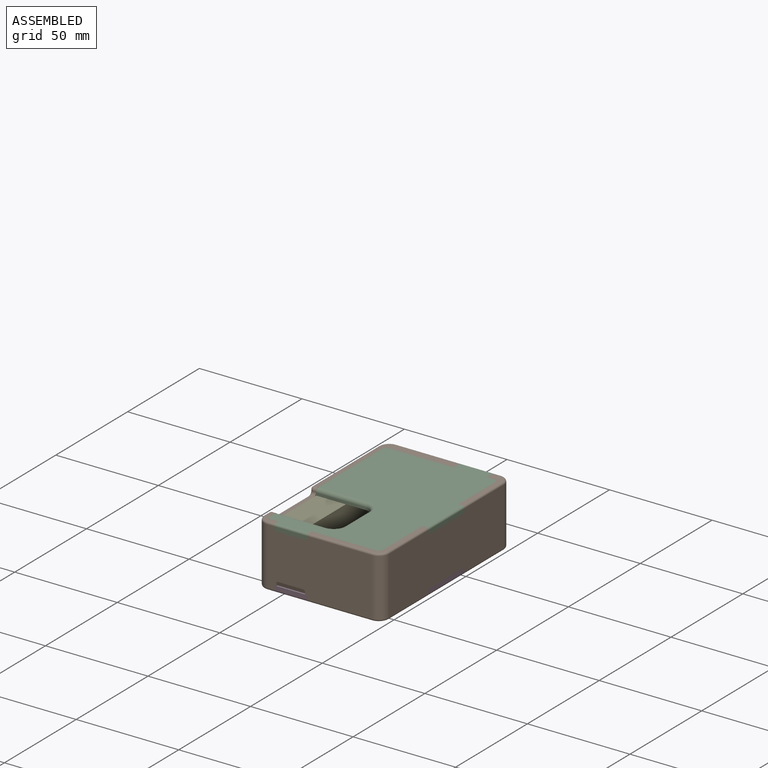
[diagram: assembled view]
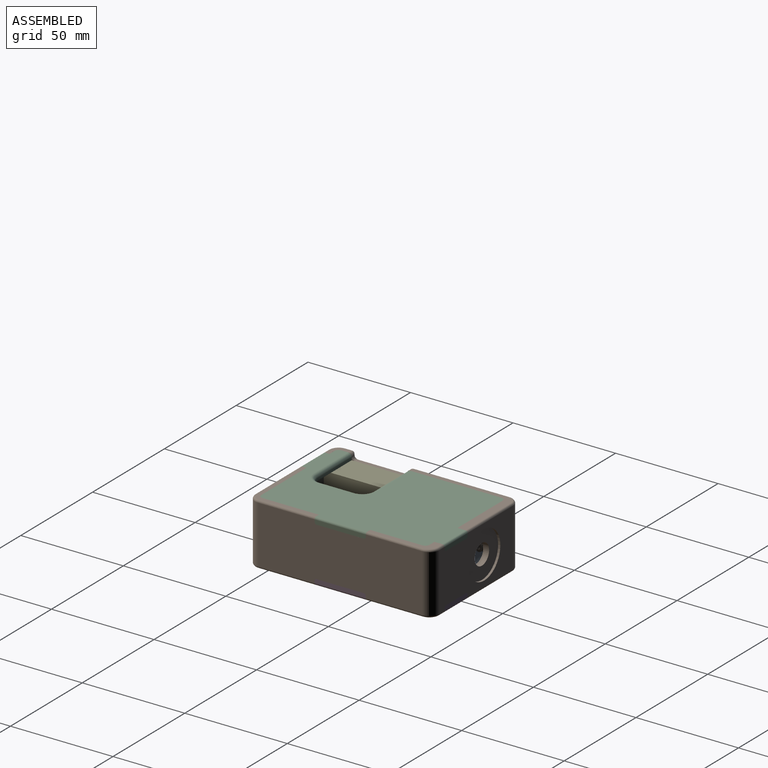
[diagram: assembled view, second angle]
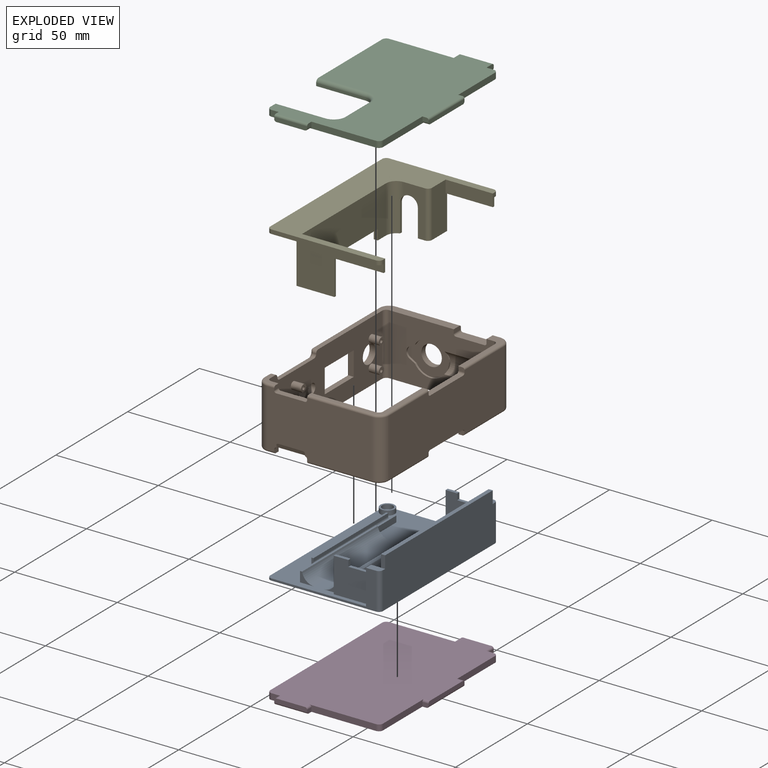
[diagram: exploded view]
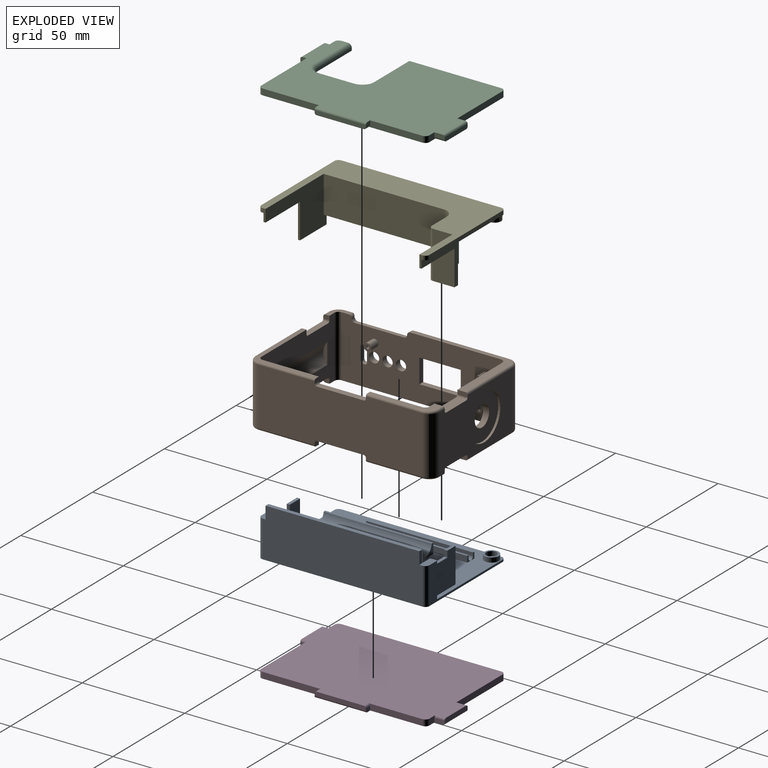
[diagram: exploded view, second angle]
ASSEMBLY  parts=5 mates=4
PART A: 66 faces, bbox 55x82x24 mm
  f0: plane 17x15.62mm, normal (0,1,0), area 235.6mm2, adj f11,f26,f29,f30,f48,f49
  f1: plane 7.38x3.5mm, normal (0,0,1), area 25mm2, adj f4,f12,f13,f14,f29,f37
  f2: plane 7.12x1.5mm, normal (0,0,1), area 10.7mm2, adj f3,f31,f45,f46
  f3: plane 22x18mm, normal (0,1,0), area 322.3mm2, adj f2,f5,f6,f8,f9,f20,f28,f32
  f4: plane 21x18mm, normal (0,-1,0), area 310.3mm2, adj f1,f7,f8,f9,f10,f20,f26,f28
  f5: plane 0.29x0.01mm, normal (0,0,1), area 0mm2, adj f3,f9,f40
  f6: plane 0.29x0.01mm, normal (0,0,1), area 0mm2, adj f3,f8,f41
  f7: plane 0.29x0.01mm, normal (0,0,1), area 0mm2, adj f4,f8,f43
  f8: cylinder r=7mm len=75mm, axis (0,-1,0), area 468mm2, adj f3,f4,f6,f7,f41,f42,f43,f44
  f9: cylinder r=7mm len=75mm, axis (0,-1,0), area 468mm2, adj f3,f4,f5,f10,f28,f38,f39,f40
  f10: plane 0.29x0.01mm, normal (0,0,1), area 0mm2, adj f4,f9,f39
  f11: plane 82x48.12mm, normal (0,0,1), area 1647mm2, adj f0,f14,f15,f16,f17,f18,f21,f22
  f12: plane 78x24mm, normal (1,0,0), area 1854mm2, adj f1,f13,f19,f20,f33,f36,f37,f65
  f13: cylinder r=2mm len=18mm, axis (0,0,-1), area 56.5mm2, adj f1,f12,f14,f20
  f14: plane 51x18mm, normal (0,1,0), area 142.4mm2, adj f1,f11,f13,f15,f20,f29
  f15: cylinder r=2mm len=2mm, axis (0,0,-1), area 3.1mm2, adj f11,f14,f16,f20
  f16: plane 78x1mm, normal (-1,0,0), area 78mm2, adj f11,f15,f17,f20
  f17: cylinder r=2mm len=2mm, axis (0,0,-1), area 3.1mm2, adj f11,f16,f18,f20
  f18: plane 51x18mm, normal (0,-1,0), area 133.9mm2, adj f11,f17,f19,f20,f32,f33
  f19: cylinder r=2mm len=18mm, axis (0,0,-1), area 56.5mm2, adj f12,f18,f20,f33
  f20: plane 82x55mm, normal (0,0,-1), area 3614.3mm2, adj f3,f4,f12,f13,f14,f15,f16,f17
  f21: plane 7x5mm, normal (0,1,0), area 12.4mm2, adj f11,f22,f24,f35
  f22: plane 52.74x5mm, normal (-1,0,0), area 263.7mm2, adj f11,f21,f23,f24
  f23: plane 7x5mm, normal (0,-1,0), area 12.4mm2, adj f11,f22,f24,f35
  f24: plane 52.74x1mm, normal (0,0,1), area 52.7mm2, adj f21,f22,f23,f35
  f25: plane 6x5mm, normal (0,-1,0), area 7.4mm2, adj f11,f34,f45
  f26: plane 23.76x17mm, normal (-1,0,0), area 136.8mm2, adj f0,f4,f11,f27,f28,f30
  f27: plane 7x5mm, normal (0,1,0), area 12.4mm2, adj f11,f26,f28,f34
  f28: plane 75x2mm, normal (0,0,1), area 127.7mm2, adj f3,f4,f9,f26,f27,f34
  f29: plane 17x3.5mm, normal (-1,0,0), area 38.5mm2, adj f0,f1,f4,f11,f14,f49
  f30: plane 5.62x1.5mm, normal (0,0,1), area 8.4mm2, adj f0,f4,f26,f48
  f31: plane 17.12x17mm, normal (0,-1,0), area 261.1mm2, adj f2,f11,f32,f45,f46,f47
  f32: plane 17x3.5mm, normal (-1,0,0), area 38.5mm2, adj f3,f11,f18,f31,f33,f47
  f33: plane 6.88x3.5mm, normal (0,0,1), area 23.2mm2, adj f3,f12,f18,f19,f32,f36
  f34: cylinder r=6.1mm len=52.74mm, axis (0,-1,0), area 447mm2, adj f11,f25,f27,f28
  f35: cylinder r=6.1mm len=52.74mm, axis (0,-1,0), area 447mm2, adj f11,f21,f23,f24
  f36: plane 6x2mm, normal (0,-1,0), area 12mm2, adj f12,f33,f44,f65
  f37: plane 6x2mm, normal (0,1,0), area 12mm2, adj f1,f12,f44,f65
  f38: plane 69x1.55mm, normal (1,0,0), area 106.6mm2, adj f9,f20,f39,f40
  f39: cylinder r=3mm len=3mm, axis (0,0,-1), area 5.9mm2, adj f4,f9,f10,f20,f38
  f40: cylinder r=3mm len=3mm, axis (0,0,-1), area 5.9mm2, adj f3,f5,f9,f20,f38
  f41: cylinder r=3mm len=3mm, axis (0,0,-1), area 5.9mm2, adj f3,f6,f8,f20,f42
  f42: plane 69x1.55mm, normal (-1,0,0), area 106.6mm2, adj f8,f20,f41,f43
  f43: cylinder r=3mm len=3mm, axis (0,0,-1), area 5.9mm2, adj f4,f7,f8,f20,f42
  f44: plane 75x18mm, normal (-1,0,0), area 1350mm2, adj f3,f4,f8,f36,f37,f65
  f45: plane 17x1.5mm, normal (-1,0,0), area 25.5mm2, adj f2,f3,f11,f25,f31
  f46: plane 3x1.5mm, normal (1,0,0), area 4.5mm2, adj f2,f3,f31,f47
  f47: plane 10x1.5mm, normal (0,0,1), area 15mm2, adj f3,f31,f32,f46
  f48: plane 3x1.5mm, normal (1,0,0), area 4.5mm2, adj f0,f4,f30,f49
  f49: plane 10x1.5mm, normal (0,0,1), area 15mm2, adj f0,f4,f29,f48
  f50: cylinder r=2.62mm len=5.25mm, axis (0,0,-1), area 37.1mm2, adj f52,f53
  f51: cylinder r=3.5mm len=7mm, axis (0,0,-1), area 49.5mm2, adj f11,f52
  f52: plane 7x7mm, normal (0,0,1), area 16.8mm2, adj f50,f51
  f53: plane 5.25x5.25mm, normal (0,0,1), area 21.6mm2, adj f50
  f54: plane 3x2.5mm, normal (0,-1,0), area 3.5mm2, adj f11,f55,f57,f58,f64
  f55: plane 52.08x3mm, normal (1,0,0), area 156.2mm2, adj f11,f54,f56,f58
  f56: plane 3x2.5mm, normal (0,1,0), area 3.5mm2, adj f11,f55,f57,f58,f64
  f57: plane 52.08x1.5mm, normal (-1,0,0), area 78.1mm2, adj f54,f56,f58,f64
  f58: plane 52.08x1mm, normal (0,0,1), area 52.1mm2, adj f54,f55,f56,f57
  f59: plane 3x2.5mm, normal (0,-1,0), area 3.5mm2, adj f11,f60,f62,f63,f64
  f60: plane 52.08x1.5mm, normal (1,0,0), area 78.1mm2, adj f59,f61,f63,f64
  f61: plane 3x2.5mm, normal (0,1,0), area 3.5mm2, adj f11,f60,f62,f63,f64
  f62: plane 52.08x3mm, normal (-1,0,0), area 156.2mm2, adj f11,f59,f61,f63
  f63: plane 52.08x1mm, normal (0,0,1), area 52.1mm2, adj f59,f60,f61,f62
  f64: cylinder r=1.5mm len=52.08mm, axis (0,1,0), area 245.4mm2, adj f54,f56,f57,f59,f60,f61
  f65: plane 75x2mm, normal (0,0,1), area 150mm2, adj f12,f36,f37,f44
PART B: 150 faces, bbox 61.8x90.8x30 mm
  f0: plane 51x30mm, normal (0,-1,0), area 1006.7mm2, adj f1,f8,f9,f14,f22,f23,f25,f29
  f1: cylinder r=8.5mm len=15.02mm, axis (0,-1,0), area 17.6mm2, adj f0,f80,f84,f124
  f2: plane 51x30mm, normal (0,1,0), area 1020.8mm2, adj f5,f7,f10,f15,f20,f21,f25,f32
  f3: plane 78x30mm, normal (1,0,0), area 1843.6mm2, adj f7,f8,f21,f22,f25,f90,f91,f92
  f4: plane 80x28mm, normal (-1,0,0), area 1709.6mm2, adj f16,f17,f45,f72,f77,f98,f99,f100
  f5: plane 14x2.27mm, normal (0,0,-1), area 31.8mm2, adj f2,f64,f65,f85
  f6: cylinder r=5mm len=10mm, axis (0,1,0), area 91.1mm2, adj f79,f80
  f7: plane 7.5x7.5mm, normal (0,0,1), area 23.4mm2, adj f2,f3,f21,f37,f43,f44,f45,f127
  f8: plane 50.5x35.5mm, normal (0,0,1), area 232.4mm2, adj f0,f3,f22,f35,f75,f76,f77,f136
  f9: plane 31.5x7.5mm, normal (0,0,1), area 82.4mm2, adj f0,f13,f23,f34,f40,f46,f47,f48
  f10: plane 35.5x31.5mm, normal (0,0,1), area 127.4mm2, adj f2,f13,f20,f38,f41,f49,f50,f51
  f11: plane 51x28mm, normal (0,1,0), area 967.3mm2, adj f16,f24,f29,f30,f31,f34,f35,f36
  f12: plane 80x28mm, normal (1,0,0), area 2140.9mm2, adj f19,f24,f26,f27,f28,f40,f41,f42
  f13: plane 78x30mm, normal (-1,0,0), area 2190.9mm2, adj f9,f10,f14,f15,f20,f23,f26,f27
  f14: plane 31.5x7.5mm, normal (0,0,-1), area 82.4mm2, adj f0,f13,f23,f26,f30,f58,f59,f60
  f15: plane 35.5x31.5mm, normal (0,0,-1), area 127.4mm2, adj f2,f13,f20,f27,f33,f61,f62,f63
  f16: cylinder r=5mm len=28mm, axis (0,0,-1), area 219.9mm2, adj f4,f11,f71,f76
  f17: cylinder r=5mm len=28mm, axis (0,0,-1), area 219.9mm2, adj f4,f18,f44,f73
  f18: plane 51x28mm, normal (0,-1,0), area 1337.3mm2, adj f17,f19,f32,f33,f37,f38,f39,f43
  f19: cylinder r=5mm len=28mm, axis (0,0,-1), area 219.9mm2, adj f12,f18,f50,f62
  f20: cylinder r=2mm len=30mm, axis (0,0,-1), area 94.2mm2, adj f2,f10,f13,f15
  f21: cylinder r=2mm len=30mm, axis (0,0,-1), area 94.2mm2, adj f2,f3,f7,f25
  f22: cylinder r=2mm len=30mm, axis (0,0,-1), area 94.2mm2, adj f0,f3,f8,f25
  f23: cylinder r=2mm len=30mm, axis (0,0,-1), area 94.2mm2, adj f0,f9,f13,f14
  f24: cylinder r=5mm len=28mm, axis (0,0,-1), area 219.9mm2, adj f11,f12,f47,f59
  f25: plane 88x35.5mm, normal (0,0,-1), area 315.8mm2, adj f0,f2,f3,f21,f22,f29,f32,f70
  f26: plane 3x2mm, normal (0,-1,0), area 5.8mm2, adj f12,f13,f14,f58,f66
  f27: plane 3x2mm, normal (0,1,0), area 5.8mm2, adj f12,f13,f15,f61,f67
  f28: plane 23x3mm, normal (0,0,-1), area 69mm2, adj f12,f13,f66,f67
  f29: plane 5x2mm, normal (1,0,0), area 9.8mm2, adj f0,f11,f25,f69,f70
  f30: plane 5x2mm, normal (-1,0,0), area 9.8mm2, adj f0,f11,f14,f60,f68
  f31: plane 14x5mm, normal (0,0,-1), area 70mm2, adj f0,f11,f68,f69
  f32: plane 3x2mm, normal (1,0,0), area 5.8mm2, adj f2,f18,f25,f64,f74
  f33: plane 3x2mm, normal (-1,0,0), area 5.8mm2, adj f2,f15,f18,f63,f65
  f34: plane 5x2mm, normal (-1,0,0), area 9.8mm2, adj f0,f9,f11,f48,f53
  f35: plane 5x2mm, normal (1,0,0), area 9.8mm2, adj f0,f8,f11,f52,f75
  f36: plane 14x5mm, normal (0,0,1), area 70mm2, adj f0,f11,f52,f53
  f37: plane 3x2mm, normal (1,0,0), area 5.8mm2, adj f2,f7,f18,f43,f54
  f38: plane 3x2mm, normal (-1,0,0), area 5.8mm2, adj f2,f10,f18,f49,f55
  f39: plane 14x3mm, normal (0,0,1), area 42mm2, adj f2,f18,f54,f55
  f40: plane 3x2mm, normal (0,-1,0), area 5.8mm2, adj f9,f12,f13,f46,f57
  f41: plane 3x2mm, normal (0,1,0), area 5.8mm2, adj f10,f12,f13,f51,f56
  f42: plane 23x3mm, normal (0,0,1), area 69mm2, adj f12,f13,f56,f57
  f43: cylinder r=1mm len=3.5mm, axis (-1,0,0), area 5.5mm2, adj f7,f18,f37,f44
  f44: torus R=4mm, axis (0,0,1), area 11.4mm2, adj f7,f17,f43,f45
  f45: cylinder r=1mm len=3.5mm, axis (0,1,0), area 5.5mm2, adj f4,f7,f44,f128
  f46: cylinder r=1mm len=27.5mm, axis (0,-1,0), area 43.2mm2, adj f9,f12,f40,f47
  f47: torus R=4mm, axis (0,0,1), area 11.4mm2, adj f9,f24,f46,f48
  f48: cylinder r=1mm len=3.5mm, axis (1,0,0), area 5.5mm2, adj f9,f11,f34,f47
  f49: cylinder r=1mm len=31.5mm, axis (-1,0,0), area 49.5mm2, adj f10,f18,f38,f50
  f50: torus R=4mm, axis (0,0,1), area 11.4mm2, adj f10,f19,f49,f51
  f51: cylinder r=1mm len=27.5mm, axis (0,-1,0), area 43.2mm2, adj f10,f12,f41,f50
  f52: cylinder r=1mm len=5mm, axis (0,-1,0), area 7.9mm2, adj f0,f11,f35,f36
  f53: cylinder r=1mm len=5mm, axis (0,1,0), area 7.9mm2, adj f0,f11,f34,f36
  f54: cylinder r=1mm len=3mm, axis (0,-1,0), area 4.7mm2, adj f2,f18,f37,f39
  f55: cylinder r=1mm len=3mm, axis (0,1,0), area 4.7mm2, adj f2,f18,f38,f39
  f56: cylinder r=1mm len=3mm, axis (1,0,0), area 4.7mm2, adj f12,f13,f41,f42
  f57: cylinder r=1mm len=3mm, axis (-1,0,0), area 4.7mm2, adj f12,f13,f40,f42
  f58: cylinder r=1mm len=27.5mm, axis (0,1,0), area 43.2mm2, adj f12,f14,f26,f59
  f59: torus R=4mm, axis (0,0,1), area 11.4mm2, adj f14,f24,f58,f60
  f60: cylinder r=1mm len=3.5mm, axis (-1,0,0), area 5.5mm2, adj f11,f14,f30,f59
  f61: cylinder r=1mm len=27.5mm, axis (0,1,0), area 43.2mm2, adj f12,f15,f27,f62
  f62: torus R=4mm, axis (0,0,1), area 11.4mm2, adj f15,f19,f61,f63
  f63: cylinder r=1mm len=31.5mm, axis (1,0,0), area 49.5mm2, adj f15,f18,f33,f62
  f64: cylinder r=1mm len=3mm, axis (0,-1,0), area 4.7mm2, adj f2,f5,f18,f32,f89
  f65: cylinder r=1mm len=3mm, axis (0,1,0), area 4.7mm2, adj f2,f5,f18,f33,f88
  f66: cylinder r=1mm len=3mm, axis (-1,0,0), area 4.7mm2, adj f12,f13,f26,f28
  f67: cylinder r=1mm len=3mm, axis (1,0,0), area 4.7mm2, adj f12,f13,f27,f28
  f68: cylinder r=1mm len=5mm, axis (0,1,0), area 7.9mm2, adj f0,f11,f30,f31
  f69: cylinder r=1mm len=5mm, axis (0,-1,0), area 7.9mm2, adj f0,f11,f29,f31
  f70: cylinder r=1mm len=31.5mm, axis (-1,0,0), area 49.5mm2, adj f11,f25,f29,f71
  f71: torus R=4mm, axis (0,0,1), area 11.4mm2, adj f16,f25,f70,f72
  f72: cylinder r=1mm len=80mm, axis (0,-1,0), area 125.7mm2, adj f4,f25,f71,f73
  f73: torus R=4mm, axis (0,0,1), area 11.4mm2, adj f17,f25,f72,f74
  f74: cylinder r=1mm len=3.5mm, axis (1,0,0), area 5.5mm2, adj f18,f25,f32,f73
  f75: cylinder r=1mm len=31.5mm, axis (1,0,0), area 49.5mm2, adj f8,f11,f35,f76
  f76: torus R=4mm, axis (0,0,1), area 11.4mm2, adj f8,f16,f75,f77
  f77: cylinder r=1mm len=46.5mm, axis (0,1,0), area 73mm2, adj f4,f8,f76,f134
  f78: cylinder r=11.25mm len=22.5mm, axis (0,1,0), area 77.8mm2, adj f11,f79
  f79: plane 22.5x22.5mm, normal (0,1,0), area 319.1mm2, adj f6,f78
  f80: plane 20.13x17mm, normal (0,-1,0), area 166.2mm2, adj f1,f6,f81,f82,f83,f84,f126
  f81: cylinder r=8.5mm len=15.1mm, axis (0,-1,0), area 17.8mm2, adj f0,f80,f82,f125
  f82: plane 2.7x1.54mm, normal (0.5,0,-0.87), area 3.1mm2, adj f0,f80,f81,f83
  f83: cylinder r=3mm len=5.2mm, axis (0,-1,0), area 6.3mm2, adj f0,f80,f82,f84
  f84: plane 2.75x1.6mm, normal (0.5,0,0.86), area 3.2mm2, adj f0,f1,f80,f83
  f85: plane 14x2mm, normal (0,-0.94,-0.34), area 29.3mm2, adj f5,f18,f86,f87,f88,f89
  f86: cylinder r=1mm len=1mm, axis (0,-1,0), area 0.2mm2, adj f18,f85,f89
  f87: cylinder r=1mm len=1mm, axis (0,-1,0), area 0.2mm2, adj f18,f85,f88
  f88: plane 1x0.73mm, normal (-1,0,0), area 0.5mm2, adj f18,f65,f85,f87
  f89: plane 1x0.73mm, normal (1,0,0), area 0.5mm2, adj f18,f64,f85,f86
  f90: cylinder r=1mm len=2.5mm, axis (-1,0,0), area 3.9mm2, adj f3,f91,f95,f139
  f91: plane 6.4x2.5mm, normal (0,-1,0), area 16mm2, adj f3,f90,f92,f138
  f92: cylinder r=1mm len=2.5mm, axis (-1,0,0), area 3.9mm2, adj f3,f91,f93,f140
  f93: plane 2.5x1.2mm, normal (0,0,1), area 3mm2, adj f3,f92,f94,f142
  f94: cylinder r=1mm len=2.5mm, axis (-1,0,0), area 3.9mm2, adj f3,f93,f96,f144
  f95: plane 2.5x1.2mm, normal (0,0,-1), area 3mm2, adj f3,f90,f97,f141
  f96: plane 6.4x2.5mm, normal (0,1,0), area 16mm2, adj f3,f94,f97,f145
  f97: cylinder r=1mm len=2.5mm, axis (-1,0,0), area 3.9mm2, adj f3,f95,f96,f143
  f98: cylinder r=2.5mm len=5mm, axis (-1,0,0), area 47.1mm2, adj f3,f4
  f99: cylinder r=2.5mm len=5mm, axis (-1,0,0), area 47.1mm2, adj f3,f4
  f100: cylinder r=2.5mm len=5mm, axis (-1,0,0), area 47.1mm2, adj f3,f4
  f101: plane 20.16x2.5mm, normal (0,0,1), area 50.4mm2, adj f3,f102,f104,f146
  f102: plane 11.72x2.5mm, normal (0,1,0), area 29.3mm2, adj f3,f101,f103,f147
  f103: plane 20.16x2.5mm, normal (0,0,-1), area 50.4mm2, adj f3,f102,f104,f149
  f104: plane 11.72x2.5mm, normal (0,-1,0), area 29.3mm2, adj f3,f101,f103,f148
  f105: cylinder r=4.5mm len=9mm, axis (-1,0,0), area 84.8mm2, adj f3,f4
  f106: cylinder r=0.8mm len=5mm, axis (-1,0,0), area 25.1mm2, adj f108,f109
  f107: cylinder r=1.8mm len=5mm, axis (-1,0,0), area 56.5mm2, adj f3,f108
  f108: plane 3.6x3.6mm, normal (1,0,0), area 8.2mm2, adj f106,f107
  f109: plane 1.6x1.6mm, normal (1,0,0), area 2mm2, adj f106
  f110: cylinder r=0.8mm len=5mm, axis (-1,0,0), area 25.1mm2, adj f112,f113
  f111: cylinder r=1.8mm len=5mm, axis (-1,0,0), area 56.5mm2, adj f3,f112
  f112: plane 3.6x3.6mm, normal (1,0,0), area 8.2mm2, adj f110,f111
  f113: plane 1.6x1.6mm, normal (1,0,0), area 2mm2, adj f110
  f114: cylinder r=0.8mm len=5mm, axis (-1,0,0), area 25.1mm2, adj f116,f117
  f115: cylinder r=1.8mm len=5mm, axis (-1,0,0), area 56.5mm2, adj f3,f116
  f116: plane 3.6x3.6mm, normal (1,0,0), area 8.2mm2, adj f114,f115
  f117: plane 1.6x1.6mm, normal (1,0,0), area 2mm2, adj f114
  f118: plane 24x1.5mm, normal (0,0,1), area 36mm2, adj f3,f129,f132,f137
  f119: plane 10.1x2mm, normal (-1,0,0), area 13.8mm2, adj f0,f124,f125
  f120: plane 10.1x2mm, normal (-1,0,0), area 13.8mm2, adj f2,f122,f123
  f121: plane 10.1x2mm, normal (1,0,0), area 13.8mm2, adj f2,f122,f123
  f122: cylinder r=7.5mm len=41mm, axis (1,0,0), area 227.9mm2, adj f2,f120,f121,f123
  f123: cylinder r=7.5mm len=41mm, axis (1,0,0), area 227.9mm2, adj f2,f120,f121,f122
  f124: cylinder r=7.5mm len=19.32mm, axis (-1,0,0), area 101.3mm2, adj f0,f1,f119,f125,f126
  f125: cylinder r=7.5mm len=19.25mm, axis (-1,0,0), area 101.1mm2, adj f0,f81,f119,f124,f126
  f126: cylinder r=8.5mm len=7.39mm, axis (0,-1,0), area 5.1mm2, adj f80,f124,f125
  f127: cylinder r=1.5mm len=2mm, axis (-1,0,0), area 4.3mm2, adj f3,f7,f128,f129
  f128: bspline ~1.82x1.5mm, area 2.4mm2, adj f45,f127,f130
  f129: cylinder r=1.5mm len=1.5mm, axis (1,0,0), area 3.5mm2, adj f3,f118,f127,f131
  f130: cylinder r=1.5mm len=1.5mm, axis (0,0,-1), area 0.8mm2, adj f4,f128,f131
  f131: torus R=3mm, axis (1,0,0), area 7.6mm2, adj f4,f129,f130,f132
  f132: cylinder r=1.5mm len=24mm, axis (0,1,0), area 56.5mm2, adj f4,f118,f131,f135
  f133: cylinder r=1.5mm len=1.5mm, axis (0,0,-1), area 0.7mm2, adj f4,f134,f135
  f134: bspline ~1.58x1.5mm, area 2.4mm2, adj f77,f133,f136
  f135: torus R=3mm, axis (1,0,0), area 7.6mm2, adj f4,f132,f133,f137
  f136: cylinder r=1.5mm len=2mm, axis (1,0,0), area 4.3mm2, adj f3,f8,f134,f137
  f137: cylinder r=1.5mm len=1.5mm, axis (-1,0,0), area 3.5mm2, adj f3,f118,f135,f136
  f138: cylinder r=0.5mm len=6.4mm, axis (0,0,-1), area 5mm2, adj f4,f91,f139,f140
  f139: torus R=1.5mm, axis (1,0,0), area 1.5mm2, adj f4,f90,f138,f141
  f140: torus R=1.5mm, axis (1,0,0), area 1.5mm2, adj f4,f92,f138,f142
  f141: cylinder r=0.5mm len=1.2mm, axis (0,1,0), area 0.9mm2, adj f4,f95,f139,f143
  f142: cylinder r=0.5mm len=1.2mm, axis (0,-1,0), area 0.9mm2, adj f4,f93,f140,f144
  f143: torus R=1.5mm, axis (1,0,0), area 1.5mm2, adj f4,f97,f141,f145
  f144: torus R=1.5mm, axis (1,0,0), area 1.5mm2, adj f4,f94,f142,f145
  f145: cylinder r=0.5mm len=6.4mm, axis (0,0,1), area 5mm2, adj f4,f96,f143,f144
  f146: cylinder r=0.5mm len=21.16mm, axis (0,-1,0), area 16.1mm2, adj f4,f101,f147,f148
  f147: cylinder r=0.5mm len=12.72mm, axis (0,0,1), area 9.5mm2, adj f4,f102,f146,f149
  f148: cylinder r=0.5mm len=12.72mm, axis (0,0,-1), area 9.5mm2, adj f4,f104,f146,f149
  f149: cylinder r=0.5mm len=21.16mm, axis (0,1,0), area 16.1mm2, adj f4,f103,f147,f148
PART C: 48 faces, bbox 58x90x3 mm
  f0: plane 28.5x3mm, normal (1,0,0), area 82.7mm2, adj f1,f25,f26,f27,f46
  f1: plane 3x2mm, normal (0,-1,0), area 5.8mm2, adj f0,f2,f26,f29,f46
  f2: plane 25x2mm, normal (1,0,0), area 49.6mm2, adj f1,f3,f27,f29,f44,f46
  f3: plane 3x2mm, normal (0,1,0), area 5.8mm2, adj f2,f4,f26,f29,f44
  f4: plane 26.5x3mm, normal (1,0,0), area 76.7mm2, adj f3,f5,f26,f27,f44
  f5: cylinder r=2mm len=3mm, axis (0,0,-1), area 9.4mm2, adj f4,f6,f26,f27
  f6: plane 4.5x3mm, normal (0,1,0), area 10.7mm2, adj f5,f7,f26,f27,f45
  f7: plane 5x2mm, normal (1,0,0), area 9.8mm2, adj f6,f8,f26,f30,f45
  f8: plane 16x2mm, normal (0,1,0), area 31.6mm2, adj f7,f9,f27,f30,f45,f47
  f9: plane 5x2mm, normal (-1,0,0), area 9.8mm2, adj f8,f10,f26,f30,f47
  f10: plane 32.5x3mm, normal (0,1,0), area 94.7mm2, adj f9,f11,f26,f27,f47
  f11: cylinder r=2mm len=3mm, axis (0,0,-1), area 9.4mm2, adj f10,f12,f26,f27
  f12: plane 46x3mm, normal (-1,0,0), area 137.4mm2, adj f11,f13,f26,f27,f31
  f13: plane 24x1.3mm, normal (0,-1,0), area 31.2mm2, adj f12,f14,f27,f31
  f14: cylinder r=5mm len=5mm, axis (0,0,-1), area 10.2mm2, adj f13,f15,f27,f32
  f15: plane 17x1.3mm, normal (-1,0,0), area 22.1mm2, adj f14,f16,f27,f33
  f16: cylinder r=5mm len=5mm, axis (0,0,-1), area 10.2mm2, adj f15,f17,f27,f34
  f17: plane 24x1.3mm, normal (0,1,0), area 31.2mm2, adj f16,f18,f27,f35
  f18: plane 5x3mm, normal (-1,0,0), area 14.4mm2, adj f17,f19,f26,f27,f35
  f19: cylinder r=2mm len=3mm, axis (0,0,-1), area 9.4mm2, adj f18,f20,f26,f27
  f20: plane 4.5x3mm, normal (0,-1,0), area 10.7mm2, adj f19,f21,f26,f27,f42
  f21: plane 3x2mm, normal (-1,0,0), area 5.8mm2, adj f20,f22,f26,f28,f42
  f22: plane 16x2mm, normal (0,-1,0), area 31.6mm2, adj f21,f23,f27,f28,f42,f43
  f23: plane 3x2mm, normal (1,0,0), area 5.8mm2, adj f22,f24,f26,f28,f43
  f24: plane 32.5x3mm, normal (0,-1,0), area 94.7mm2, adj f23,f25,f26,f27,f43
  f25: cylinder r=2mm len=3mm, axis (0,0,-1), area 9.4mm2, adj f0,f24,f26,f27
  f26: plane 88x57mm, normal (0,0,1), area 3738.6mm2, adj f0,f1,f3,f4,f5,f6,f7,f9
  f27: plane 90x58mm, normal (0,0,-1), area 3820.3mm2, adj f0,f2,f4,f5,f6,f8,f10,f11
  f28: cylinder r=1mm len=16mm, axis (-1,0,0), area 25.1mm2, adj f21,f22,f23,f26
  f29: cylinder r=1mm len=25mm, axis (0,-1,0), area 39.3mm2, adj f1,f2,f3,f26
  f30: cylinder r=1mm len=16mm, axis (1,0,0), area 25.1mm2, adj f7,f8,f9,f26
  f31: cylinder r=1.7mm len=24mm, axis (-1,0,0), area 64.1mm2, adj f12,f13,f26,f32
  f32: torus R=6.7mm, axis (0,0,1), area 23.6mm2, adj f14,f26,f31,f33
  f33: cylinder r=1.7mm len=17mm, axis (0,1,0), area 45.4mm2, adj f15,f26,f32,f34
  f34: torus R=6.7mm, axis (0,0,1), area 23.6mm2, adj f16,f26,f33,f35
  f35: cylinder r=1.7mm len=24mm, axis (1,0,0), area 64.1mm2, adj f17,f18,f26,f34
  f36: cylinder r=3.17mm len=6.35mm, axis (0,0,-1), area 44.9mm2, adj f27,f37
  f37: plane 6.35x6.35mm, normal (0,0,-1), area 31.7mm2, adj f36
  f38: cylinder r=3.17mm len=6.35mm, axis (0,0,-1), area 44.9mm2, adj f27,f39
  f39: plane 6.35x6.35mm, normal (0,0,-1), area 31.7mm2, adj f38
  f40: cylinder r=3.17mm len=6.35mm, axis (0,0,-1), area 44.9mm2, adj f27,f41
  f41: plane 6.35x6.35mm, normal (0,0,-1), area 31.7mm2, adj f40
  f42: cylinder r=1mm len=3mm, axis (0,-1,0), area 4.7mm2, adj f20,f21,f22,f27
  f43: cylinder r=1mm len=3mm, axis (0,1,0), area 4.7mm2, adj f22,f23,f24,f27
  f44: cylinder r=1mm len=3mm, axis (-1,0,0), area 4.7mm2, adj f2,f3,f4,f27
  f45: cylinder r=1mm len=5mm, axis (0,1,0), area 7.9mm2, adj f6,f7,f8,f27
  f46: cylinder r=1mm len=3mm, axis (1,0,0), area 4.7mm2, adj f0,f1,f2,f27
  f47: cylinder r=1mm len=5mm, axis (0,-1,0), area 7.9mm2, adj f8,f9,f10,f27
PART D: 31 faces, bbox 58x90x3 mm
  f0: plane 5x2mm, normal (1,0,0), area 9.8mm2, adj f1,f19,f20,f22,f28
  f1: plane 32.5x3mm, normal (0,-1,0), area 94.7mm2, adj f0,f2,f20,f21,f28
  f2: cylinder r=2mm len=3mm, axis (0,0,1), area 9.4mm2, adj f1,f3,f20,f21
  f3: plane 78x3mm, normal (1,0,0), area 234mm2, adj f2,f4,f20,f21
  f4: cylinder r=2mm len=3mm, axis (0,0,1), area 9.4mm2, adj f3,f5,f20,f21
  f5: plane 4.5x3mm, normal (0,1,0), area 10.7mm2, adj f4,f6,f20,f21,f25
  f6: plane 3x2mm, normal (1,0,0), area 5.8mm2, adj f5,f7,f20,f23,f25
  f7: plane 16x2mm, normal (0,1,0), area 31.6mm2, adj f6,f8,f21,f23,f25,f30
  f8: plane 3x2mm, normal (-1,0,0), area 5.8mm2, adj f7,f9,f20,f23,f30
  f9: plane 32.5x3mm, normal (0,1,0), area 94.7mm2, adj f8,f10,f20,f21,f30
  f10: cylinder r=2mm len=3mm, axis (0,0,1), area 9.4mm2, adj f9,f11,f20,f21
  f11: plane 28.5x3mm, normal (-1,0,0), area 82.7mm2, adj f10,f12,f20,f21,f26
  f12: plane 3x2mm, normal (0,1,0), area 5.8mm2, adj f11,f13,f20,f24,f26
  f13: plane 25x2mm, normal (-1,0,0), area 49.6mm2, adj f12,f14,f21,f24,f26,f27
  f14: plane 3x2mm, normal (0,-1,0), area 5.8mm2, adj f13,f15,f20,f24,f27
  f15: plane 26.5x3mm, normal (-1,0,0), area 76.7mm2, adj f14,f16,f20,f21,f27
  f16: cylinder r=2mm len=3mm, axis (0,0,1), area 9.4mm2, adj f15,f17,f20,f21
  f17: plane 4.5x3mm, normal (0,-1,0), area 10.7mm2, adj f16,f18,f20,f21,f29
  f18: plane 5x2mm, normal (-1,0,0), area 9.8mm2, adj f17,f19,f20,f22,f29
  f19: plane 16x2mm, normal (0,-1,0), area 31.6mm2, adj f0,f18,f21,f22,f28,f29
  f20: plane 88x57mm, normal (0,0,-1), area 4652.6mm2, adj f0,f1,f2,f3,f4,f5,f6,f8
  f21: plane 90x58mm, normal (0,0,1), area 4687.6mm2, adj f1,f2,f3,f4,f5,f7,f9,f10
  f22: cylinder r=1mm len=16mm, axis (-1,0,0), area 25.1mm2, adj f0,f18,f19,f20
  f23: cylinder r=1mm len=16mm, axis (1,0,0), area 25.1mm2, adj f6,f7,f8,f20
  f24: cylinder r=1mm len=25mm, axis (0,1,0), area 39.3mm2, adj f12,f13,f14,f20
  f25: cylinder r=1mm len=3mm, axis (0,1,0), area 4.7mm2, adj f5,f6,f7,f21
  f26: cylinder r=1mm len=3mm, axis (-1,0,0), area 4.7mm2, adj f11,f12,f13,f21
  f27: cylinder r=1mm len=3mm, axis (1,0,0), area 4.7mm2, adj f13,f14,f15,f21
  f28: cylinder r=1mm len=5mm, axis (0,1,0), area 7.9mm2, adj f0,f1,f19,f21
  f29: cylinder r=1mm len=5mm, axis (0,-1,0), area 7.9mm2, adj f17,f18,f19,f21
  f30: cylinder r=1mm len=3mm, axis (0,-1,0), area 4.7mm2, adj f7,f8,f9,f21
PART E: 39 faces, bbox 55x82x23 mm
  f0: plane 52.75x2mm, normal (0,0,-1), area 105.5mm2, adj f2,f11,f36,f37
  f1: plane 23x10.5mm, normal (0,-1,0), area 122mm2, adj f8,f18,f19,f20,f35,f38
  f2: plane 42.5x23mm, normal (0,1,0), area 533.5mm2, adj f0,f10,f11,f13,f18,f24,f25,f36
  f3: plane 3.13x3.13mm, normal (0,0,-1), area 1.2mm2, adj f5,f6,f7,f29
  f4: plane 82x55mm, normal (0,0,-1), area 1397.6mm2, adj f6,f7,f9,f11,f12,f13,f15,f16
  f5: cylinder r=2mm len=2mm, axis (0,0,1), area 6.3mm2, adj f3,f6,f7,f18
  f6: plane 78x2mm, normal (-1,0,0), area 156mm2, adj f3,f4,f5,f18,f22
  f7: plane 51x2mm, normal (0,1,0), area 102mm2, adj f3,f4,f5,f18,f32
  f8: plane 12.5x5.5mm, normal (0,0,-1), area 33.4mm2, adj f1,f9,f16,f19,f23,f34,f35
  f9: plane 25.5x21mm, normal (0,1,0), area 144.5mm2, adj f4,f8,f15,f16,f27,f34
  f10: plane 17x1mm, normal (1,0,0), area 17mm2, adj f2,f12,f24,f25
  f11: plane 65.5x21mm, normal (-1,0,0), area 1112.1mm2, adj f0,f2,f4,f12,f23,f24,f26,f37
  f12: plane 42.5x21mm, normal (0,-1,0), area 484.5mm2, adj f4,f10,f11,f13,f24,f25
  f13: plane 6x1.5mm, normal (1,0,0), area 7mm2, adj f2,f4,f12,f18,f25,f33
  f14: plane 23x6mm, normal (0,-1,0), area 138mm2, adj f15,f18,f27,f34
  f15: plane 6x1.5mm, normal (1,0,0), area 7mm2, adj f4,f9,f14,f18,f27,f32
  f16: plane 21x11.5mm, normal (-1,0,0), area 241.5mm2, adj f4,f8,f9,f23
  f17: plane 51x2mm, normal (0,-1,0), area 102mm2, adj f4,f18,f22,f33
  f18: plane 82x55mm, normal (0,0,1), area 1674.8mm2, adj f1,f2,f5,f6,f7,f13,f14,f15
  f19: plane 13.5x1mm, normal (-1,0,0), area 13.5mm2, adj f1,f8,f20,f23
  f20: cylinder r=4.25mm len=8.5mm, axis (0,-1,0), area 13.8mm2, adj f1,f19,f21,f23,f38
  f21: plane 13.5x1.23mm, normal (1,0,0), area 16.6mm2, adj f20,f23,f26,f38
  f22: cylinder r=2mm len=2mm, axis (0,0,-1), area 6.3mm2, adj f4,f6,f17,f18
  f23: plane 21x17mm, normal (0,1,0), area 213.9mm2, adj f4,f8,f11,f16,f19,f20,f21,f26
  f24: plane 18.5x1mm, normal (0,0,-1), area 18.5mm2, adj f2,f10,f11,f12
  f25: plane 24x1mm, normal (0,0,-1), area 24mm2, adj f2,f10,f12,f13
  f26: plane 11.75x5.5mm, normal (0,0,-1), area 32.3mm2, adj f11,f21,f23,f36,f37,f38
  f27: plane 23x1mm, normal (0,0,-1), area 23mm2, adj f9,f14,f15,f34
  f28: cylinder r=2.62mm len=5.25mm, axis (0,0,1), area 37.1mm2, adj f30,f31
  f29: cylinder r=3.12mm len=6.25mm, axis (0,0,1), area 44.2mm2, adj f3,f4,f30
  f30: plane 6.25x6.25mm, normal (0,0,-1), area 9mm2, adj f28,f29
  f31: plane 5.25x5.25mm, normal (0,0,-1), area 21.6mm2, adj f28
  f32: cylinder r=2mm len=2mm, axis (0,0,-1), area 6.3mm2, adj f4,f7,f15,f18
  f33: cylinder r=2mm len=2mm, axis (0,0,1), area 6.3mm2, adj f4,f13,f17,f18
  f34: plane 23x10.5mm, normal (1,0,0), area 235.5mm2, adj f8,f9,f14,f18,f27,f35
  f35: cylinder r=2mm len=23mm, axis (0,0,-1), area 72.3mm2, adj f1,f8,f18,f34
  f36: plane 58.5x23mm, normal (1,0,0), area 1082.1mm2, adj f0,f2,f18,f26,f37,f38
  f37: plane 4.99x2mm, normal (0,-1,0), area 10mm2, adj f0,f11,f26,f36
  f38: cylinder r=5mm len=23mm, axis (0,0,-1), area 156.7mm2, adj f1,f18,f20,f21,f26,f36
PLACE A t=(-19.07,-2.19,-26.36)mm
PLACE B t=(-19.07,-1.19,-29.36)mm
PLACE C t=(-18.82,-2.34,-2.36)mm
PLACE D rot(axis=(0,0,1),180deg) t=(-18.52,-1.87,-26.36)mm
PLACE E t=(-29.78,-11.13,-3.36)mm
MATE fastened A.f15 <-> D.f2  axis (0,0,-1) through (-44.57,36.81,-26.36)mm
MATE fastened E.f27 <-> A.f1  axis (0,0,-1) through (8.43,35.31,-8.36)mm
MATE slider D.f21 <-> B.f31  axis (0,0,1) through (-5.07,43.81,-26.36)mm
MATE slider C.f27 <-> B.f36  axis (0,0,-1) through (-5.07,43.81,-2.36)mm
